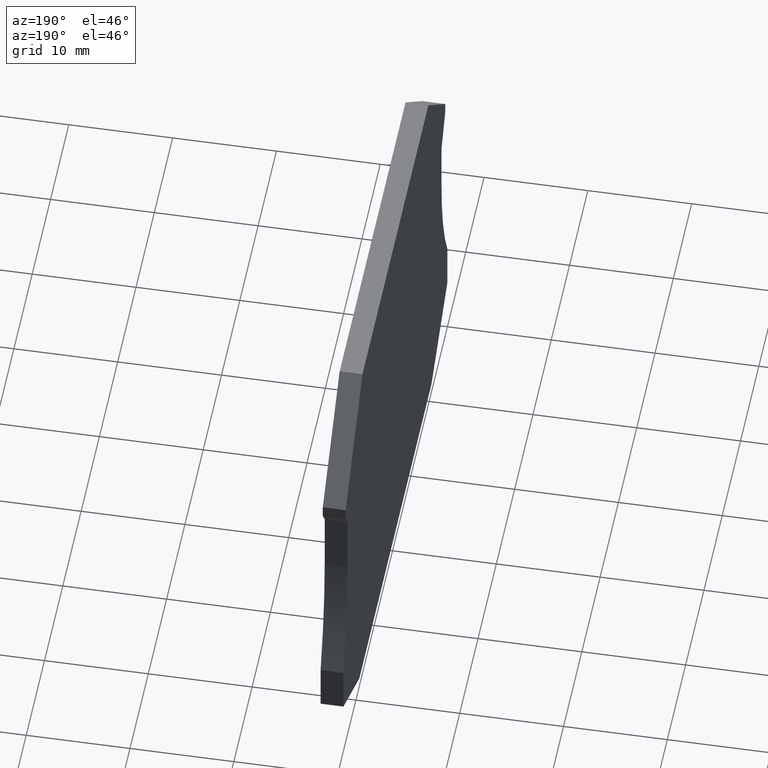
[diagram: clean part render]
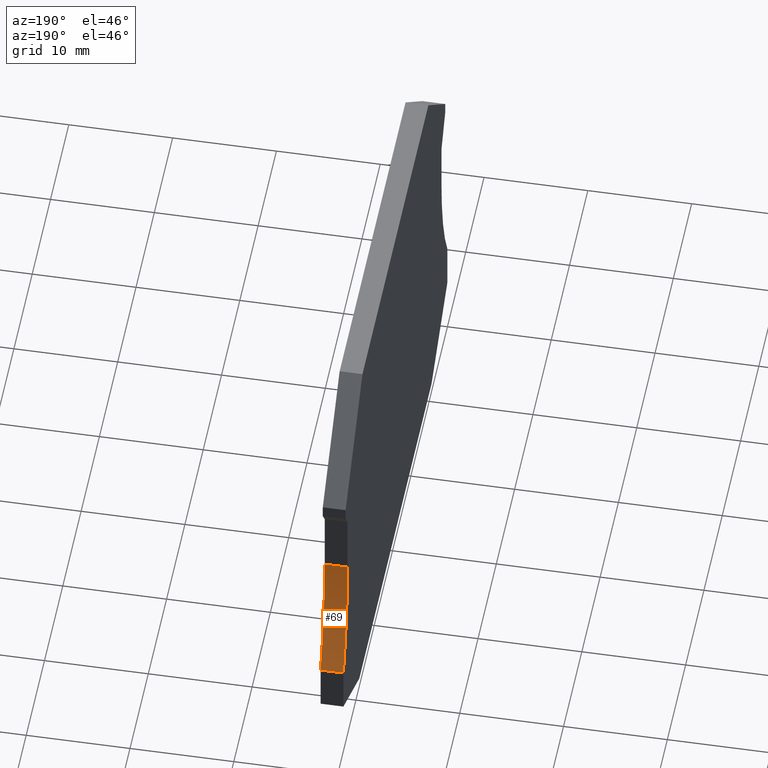
[diagram: same view with one face highlighted and labeled with its STEP entity id]
A machine part, auxiliary view. The second image highlights one B-rep face of the part: STEP entity #69.
In plain terms, the highlighted cylindrical surface (partial cylindrical patch) has radius 34 mm, axis along (-1, 0, -0).
Its self-contained STEP definition (entity closure, byte-faithful):
#69=ADVANCED_FACE('',(#136),#137,.F.);
#136=FACE_OUTER_BOUND('',#198,.T.);
#137=CYLINDRICAL_SURFACE('',#199,34.0);
#198=EDGE_LOOP('',(#331,#332,#333,#334));
#199=AXIS2_PLACEMENT_3D('',#335,#336,#337);
#331=ORIENTED_EDGE('',*,*,#439,.T.);
#332=ORIENTED_EDGE('',*,*,#440,.F.);
#333=ORIENTED_EDGE('',*,*,#395,.F.);
#334=ORIENTED_EDGE('',*,*,#437,.T.);
#335=CARTESIAN_POINT('',(2.20000000000015,88.5499999999995,21.7621318441147));
#336=DIRECTION('',(-1.0,1.11631705655199E-028,-1.05655906439346E-014));
#337=DIRECTION('',(6.11955282302791E-043,1.0,1.05655906439346E-014));
#395=EDGE_CURVE('',#472,#474,#475,.T.);
#437=EDGE_CURVE('',#472,#532,#534,.T.);
#439=EDGE_CURVE('',#532,#536,#537,.T.);
#440=EDGE_CURVE('',#474,#536,#538,.T.);
#472=VERTEX_POINT('',#580);
#474=VERTEX_POINT('',#583);
#475=CIRCLE('',#584,34.0);
#532=VERTEX_POINT('',#668);
#534=LINE('',#671,#672);
#536=VERTEX_POINT('',#674);
#537=CIRCLE('',#675,34.0);
#538=LINE('',#676,#677);
#580=CARTESIAN_POINT('',(-1.98256296288709E-016,54.5499999999995,21.7621318441143));
#583=CARTESIAN_POINT('',(1.28310558402815E-013,56.8,9.59917578894326));
#584=AXIS2_PLACEMENT_3D('',#705,#706,#707);
#668=CARTESIAN_POINT('',(2.20000000000015,54.5499999999995,21.7621318441144));
#671=CARTESIAN_POINT('',(1.36581220337531E-013,54.5499999999995,21.7621318441143));
#672=VECTOR('',#739,1.0);
#674=CARTESIAN_POINT('',(2.20000000000028,56.8,9.59917578894328));
#675=AXIS2_PLACEMENT_3D('',#740,#741,#742);
#676=CARTESIAN_POINT('',(2.20000000000028,56.8,9.59917578894328));
#677=VECTOR('',#743,1.0);
#705=CARTESIAN_POINT('',(3.75493265409673E-014,88.5499999999995,21.7621318441147));
#706=DIRECTION('',(1.0,-1.11631705655199E-028,1.05655906439346E-014));
#707=DIRECTION('',(6.11955282302791E-043,1.0,1.05655906439346E-014));
#739=DIRECTION('',(1.0,-1.11631705655199E-028,1.05655906439346E-014));
#740=CARTESIAN_POINT('',(2.20000000000015,88.5499999999995,21.7621318441147));
#741=DIRECTION('',(1.0,-1.11631705655199E-028,1.05655906439346E-014));
#742=DIRECTION('',(6.11955282302791E-043,1.0,1.05655906439346E-014));
#743=DIRECTION('',(1.0,-1.11631705655199E-028,1.05655906439346E-014));